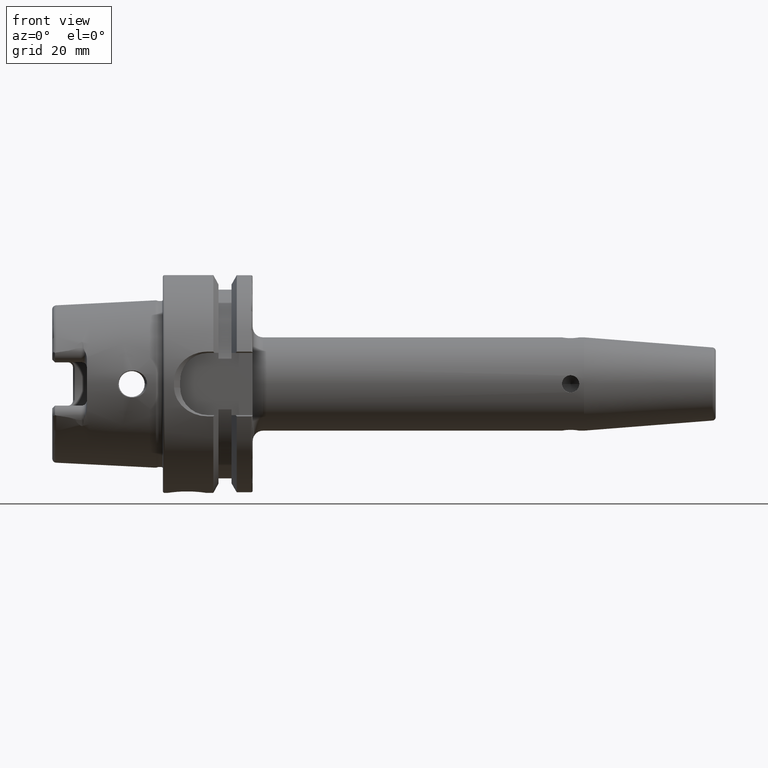
[diagram: clean part render]
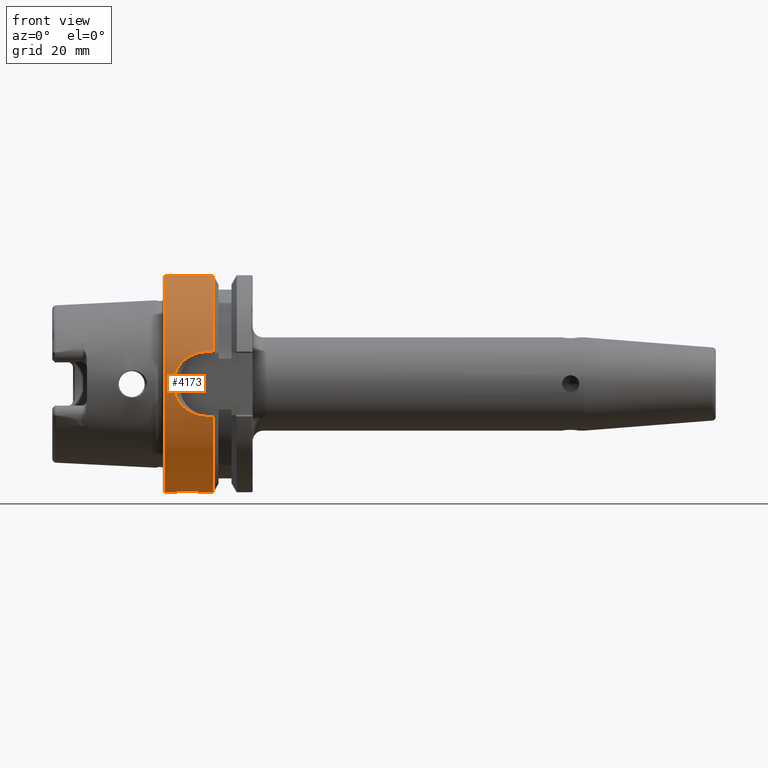
[diagram: same view with one face highlighted and labeled with its STEP entity id]
A machine part, front view. The second image highlights one B-rep face of the part: STEP entity #4173.
In plain terms, the highlighted cylindrical surface (partial cylindrical patch) has radius 31.5 mm, axis along (1, 0, 0).
Its self-contained STEP definition (entity closure, byte-faithful):
#908=CARTESIAN_POINT('',(5.E-1,0.E0,0.E0));
#909=DIRECTION('',(-1.E0,0.E0,0.E0));
#910=DIRECTION('',(0.E0,0.E0,-1.E0));
#911=AXIS2_PLACEMENT_3D('',#908,#909,#910);
#913=DIRECTION('',(-1.E0,-1.152682623977E-12,0.E0));
#914=VECTOR('',#913,1.412250090457E1);
#915=CARTESIAN_POINT('',(1.462250090457E1,0.E0,3.15E1));
#916=LINE('',#915,#914);
#917=CARTESIAN_POINT('',(1.462250090457E1,0.E0,0.E0));
#918=DIRECTION('',(1.E0,0.E0,0.E0));
#919=DIRECTION('',(0.E0,0.E0,1.E0));
#920=AXIS2_PLACEMENT_3D('',#917,#918,#919);
#922=DIRECTION('',(1.E0,0.E0,0.E0));
#923=VECTOR('',#922,1.622500904567E0);
#924=CARTESIAN_POINT('',(1.3E1,-3.007314630073E1,9.373146300730E0));
#925=LINE('',#924,#923);
#926=CARTESIAN_POINT('',(3.215877017138E0,-3.148412298286E1,1.E0));
#927=CARTESIAN_POINT('',(3.229667999164E0,-3.147033200084E1,1.434196974159E0));
#928=CARTESIAN_POINT('',(3.331305148110E0,-3.142562614716E1,2.280557906877E0));
#929=CARTESIAN_POINT('',(3.689639209254E0,-3.131261894329E1,3.497824814117E0));
#930=CARTESIAN_POINT('',(4.224387561762E0,-3.116591969202E1,4.617731549331E0));
#931=CARTESIAN_POINT('',(4.908842568303E0,-3.099748287679E1,5.632070943113E0));
#932=CARTESIAN_POINT('',(5.712482050064E0,-3.082045350516E1,6.526140660742E0));
#933=CARTESIAN_POINT('',(6.610248790574E0,-3.064607991101E1,7.296749719208E0));
#934=CARTESIAN_POINT('',(7.571522800308E0,-3.048524436851E1,7.938452155490E0));
#935=CARTESIAN_POINT('',(8.586678709411E0,-3.034375148093E1,8.460694722024E0));
#936=CARTESIAN_POINT('',(9.645764018389E0,-3.022707288446E1,8.866638984176E0));
#937=CARTESIAN_POINT('',(1.074128466146E1,-3.013966717822E1,9.158034230836E0));
#938=CARTESIAN_POINT('',(1.186302386205E1,-3.008546433696E1,9.333758812896E0));
#939=CARTESIAN_POINT('',(1.261911814478E1,-3.007314630073E1,9.373146300730E0));
#940=CARTESIAN_POINT('',(1.3E1,-3.007314630073E1,9.373146300730E0));
#942=CARTESIAN_POINT('',(3.215877017138E0,-3.148412298286E1,1.E0));
#943=CARTESIAN_POINT('',(3.194702323244E0,-3.150529767676E1,3.333333333333E-1));
#944=CARTESIAN_POINT('',(3.194702323244E0,-3.150529767676E1,
-3.333333333333E-1));
#945=CARTESIAN_POINT('',(3.215877017138E0,-3.148412298286E1,-1.E0));
#947=CARTESIAN_POINT('',(1.3E1,-3.007314630073E1,-9.373146300730E0));
#948=CARTESIAN_POINT('',(1.261853332120E1,-3.007314630073E1,-9.373146300730E0));
#949=CARTESIAN_POINT('',(1.186054965003E1,-3.008548964654E1,-9.333679878844E0));
#950=CARTESIAN_POINT('',(1.073214946153E1,-3.014018055062E1,-9.156365746563E0));
#951=CARTESIAN_POINT('',(9.631145388051E0,-3.022842683235E1,-8.862067281056E0));
#952=CARTESIAN_POINT('',(8.571278418516E0,-3.034570143073E1,-8.453719776647E0));
#953=CARTESIAN_POINT('',(7.561968874510E0,-3.048678333923E1,-7.932465852427E0));
#954=CARTESIAN_POINT('',(6.609353099417E0,-3.064632014939E1,-7.295523702098E0));
#955=CARTESIAN_POINT('',(5.719379577085E0,-3.081907849533E1,-6.532291860359E0));
#956=CARTESIAN_POINT('',(4.918592559215E0,-3.099521802093E1,-5.644324145033E0));
#957=CARTESIAN_POINT('',(4.231158808814E0,-3.116413549913E1,-4.629983120332E0));
#958=CARTESIAN_POINT('',(3.691949597490E0,-3.131190693228E1,-3.504990575318E0));
#959=CARTESIAN_POINT('',(3.331145804748E0,-3.142565099898E1,-2.281032014602E0));
#960=CARTESIAN_POINT('',(3.229661047521E0,-3.147033895248E1,-1.433978107804E0));
#961=CARTESIAN_POINT('',(3.215877017138E0,-3.148412298286E1,-1.E0));
#963=DIRECTION('',(1.E0,0.E0,0.E0));
#964=VECTOR('',#963,1.622500904567E0);
#965=CARTESIAN_POINT('',(1.3E1,-3.007314630073E1,-9.373146300730E0));
#966=LINE('',#965,#964);
#967=CARTESIAN_POINT('',(1.462250090457E1,0.E0,0.E0));
#968=DIRECTION('',(1.E0,0.E0,0.E0));
#969=DIRECTION('',(0.E0,-9.547030571660E-1,-2.975602000232E-1));
#970=AXIS2_PLACEMENT_3D('',#967,#968,#969);
#972=DIRECTION('',(-1.E0,0.E0,0.E0));
#973=VECTOR('',#972,2.122500904567E0);
#974=CARTESIAN_POINT('',(1.462250090457E1,0.E0,-3.15E1));
#975=LINE('',#974,#973);
#976=CARTESIAN_POINT('',(1.5E0,0.E0,-3.15E1));
#977=CARTESIAN_POINT('',(1.5E0,-3.588951255127E-1,-3.15E1));
#978=CARTESIAN_POINT('',(1.581138327990E0,-1.048548521747E0,-3.148782376809E1));
#979=CARTESIAN_POINT('',(1.910588073966E0,-2.006564336888E0,-3.144040908891E1));
#980=CARTESIAN_POINT('',(2.415944971875E0,-2.861556117510E0,-3.137324069068E1));
#981=CARTESIAN_POINT('',(3.093296979582E0,-3.621570072850E0,-3.129379480836E1));
#982=CARTESIAN_POINT('',(3.932860337858E0,-4.259632130927E0,-3.121237817627E1));
#983=CARTESIAN_POINT('',(4.908163968859E0,-4.738763837594E0,-3.114229734464E1));
#984=CARTESIAN_POINT('',(5.940629906439E0,-5.023428099724E0,-3.109702626598E1));
#985=CARTESIAN_POINT('',(7.003177692584E0,-5.118459986461E0,-3.108133735981E1));
#986=CARTESIAN_POINT('',(8.065102610065E0,-5.022310651440E0,-3.109720856453E1));
#987=CARTESIAN_POINT('',(9.095890701222E0,-4.737167472201E0,-3.114254165967E1));
#988=CARTESIAN_POINT('',(1.007119715688E1,-4.257247395534E0,-3.121271241342E1));
#989=CARTESIAN_POINT('',(1.091189752168E1,-3.616987749219E0,-3.129434443001E1));
#990=CARTESIAN_POINT('',(1.158923361556E1,-2.854578399489E0,-3.137389265772E1));
#991=CARTESIAN_POINT('',(1.209279314293E1,-1.998956427454E0,-3.144088492167E1));
#992=CARTESIAN_POINT('',(1.241973333056E1,-1.043420158419E0,-3.148795551285E1));
#993=CARTESIAN_POINT('',(1.25E1,-3.569041729368E-1,-3.15E1));
#994=CARTESIAN_POINT('',(1.25E1,0.E0,-3.15E1));
#996=DIRECTION('',(-1.E0,-3.500340280064E-12,0.E0));
#997=VECTOR('',#996,1.E0);
#998=CARTESIAN_POINT('',(1.5E0,0.E0,-3.15E1));
#999=LINE('',#998,#997);
#1018=CARTESIAN_POINT('',(1.25E1,0.E0,-3.15E1));
#1036=CARTESIAN_POINT('',(1.5E0,0.E0,-3.15E1));
#2851=CARTESIAN_POINT('',(1.462250090457E1,0.E0,3.15E1));
#2852=VERTEX_POINT('',#2851);
#2994=VERTEX_POINT('',#1018);
#2995=VERTEX_POINT('',#1036);
#3004=CARTESIAN_POINT('',(1.462250090457E1,0.E0,-3.15E1));
#3005=VERTEX_POINT('',#3004);
#3028=CARTESIAN_POINT('',(1.3E1,-3.007314630073E1,-9.373146300730E0));
#3029=CARTESIAN_POINT('',(1.462250090457E1,-3.007314630073E1,
-9.373146300730E0));
#3030=VERTEX_POINT('',#3028);
#3031=VERTEX_POINT('',#3029);
#3032=VERTEX_POINT('',#961);
#3033=VERTEX_POINT('',#942);
#3034=VERTEX_POINT('',#940);
#3035=CARTESIAN_POINT('',(1.462250090457E1,-3.007314630073E1,9.373146300730E0));
#3036=VERTEX_POINT('',#3035);
#3076=CARTESIAN_POINT('',(5.E-1,0.E0,3.15E1));
#3077=CARTESIAN_POINT('',(5.E-1,0.E0,-3.15E1));
#3078=VERTEX_POINT('',#3076);
#3079=VERTEX_POINT('',#3077);
#4142=CARTESIAN_POINT('',(0.E0,0.E0,0.E0));
#4143=DIRECTION('',(1.E0,0.E0,0.E0));
#4144=DIRECTION('',(0.E0,0.E0,1.E0));
#4145=AXIS2_PLACEMENT_3D('',#4142,#4143,#4144);
#4146=CYLINDRICAL_SURFACE('',#4145,3.15E1);
#4148=ORIENTED_EDGE('',*,*,#4147,.T.);
#4150=ORIENTED_EDGE('',*,*,#4149,.F.);
#4152=ORIENTED_EDGE('',*,*,#4151,.T.);
#4154=ORIENTED_EDGE('',*,*,#4153,.F.);
#4156=ORIENTED_EDGE('',*,*,#4155,.F.);
#4158=ORIENTED_EDGE('',*,*,#4157,.T.);
#4160=ORIENTED_EDGE('',*,*,#4159,.F.);
#4162=ORIENTED_EDGE('',*,*,#4161,.T.);
#4164=ORIENTED_EDGE('',*,*,#4163,.T.);
#4166=ORIENTED_EDGE('',*,*,#4165,.T.);
#4168=ORIENTED_EDGE('',*,*,#4167,.F.);
#4170=ORIENTED_EDGE('',*,*,#4169,.T.);
#4171=EDGE_LOOP('',(#4148,#4150,#4152,#4154,#4156,#4158,#4160,#4162,#4164,#4166,
#4168,#4170));
#4172=FACE_OUTER_BOUND('',#4171,.F.);
#4173=ADVANCED_FACE('',(#4172),#4146,.T.);
#912=CIRCLE('',#911,3.15E1);
#921=CIRCLE('',#920,3.15E1);
#941=B_SPLINE_CURVE_WITH_KNOTS('',3,(#926,#927,#928,#929,#930,#931,#932,#933,
#934,#935,#936,#937,#938,#939,#940),.UNSPECIFIED.,.F.,.F.,(4,1,1,1,1,1,1,1,1,1,
1,1,4),(0.E0,8.333333333333E-2,1.666666666667E-1,2.5E-1,3.333333333333E-1,
4.166666666667E-1,5.E-1,5.833333333333E-1,6.666666666667E-1,7.5E-1,
8.333333333333E-1,9.166666666667E-1,1.E0),.UNSPECIFIED.);
#946=B_SPLINE_CURVE_WITH_KNOTS('',3,(#942,#943,#944,#945),.UNSPECIFIED.,.F.,.F.,
(4,4),(0.E0,1.E0),.UNSPECIFIED.);
#962=B_SPLINE_CURVE_WITH_KNOTS('',3,(#947,#948,#949,#950,#951,#952,#953,#954,
#955,#956,#957,#958,#959,#960,#961),.UNSPECIFIED.,.F.,.F.,(4,1,1,1,1,1,1,1,1,1,
1,1,4),(0.E0,8.333333333333E-2,1.666666666667E-1,2.5E-1,3.333333333333E-1,
4.166666666667E-1,5.E-1,5.833333333333E-1,6.666666666667E-1,7.5E-1,
8.333333333333E-1,9.166666666667E-1,1.E0),.UNSPECIFIED.);
#971=CIRCLE('',#970,3.15E1);
#995=B_SPLINE_CURVE_WITH_KNOTS('',3,(#976,#977,#978,#979,#980,#981,#982,#983,
#984,#985,#986,#987,#988,#989,#990,#991,#992,#993,#994),.UNSPECIFIED.,.F.,.F.,
(4,1,1,1,1,1,1,1,1,1,1,1,1,1,1,1,4),(0.E0,6.25E-2,1.25E-1,1.875E-1,2.5E-1,
3.125E-1,3.75E-1,4.375E-1,5.E-1,5.625E-1,6.25E-1,6.875E-1,7.5E-1,8.125E-1,
8.75E-1,9.375E-1,1.E0),.UNSPECIFIED.);
#4147=EDGE_CURVE('',#3079,#3078,#912,.T.);
#4149=EDGE_CURVE('',#2852,#3078,#916,.T.);
#4151=EDGE_CURVE('',#2852,#3036,#921,.T.);
#4153=EDGE_CURVE('',#3034,#3036,#925,.T.);
#4155=EDGE_CURVE('',#3033,#3034,#941,.T.);
#4157=EDGE_CURVE('',#3033,#3032,#946,.T.);
#4159=EDGE_CURVE('',#3030,#3032,#962,.T.);
#4161=EDGE_CURVE('',#3030,#3031,#966,.T.);
#4163=EDGE_CURVE('',#3031,#3005,#971,.T.);
#4165=EDGE_CURVE('',#3005,#2994,#975,.T.);
#4167=EDGE_CURVE('',#2995,#2994,#995,.T.);
#4169=EDGE_CURVE('',#2995,#3079,#999,.T.);